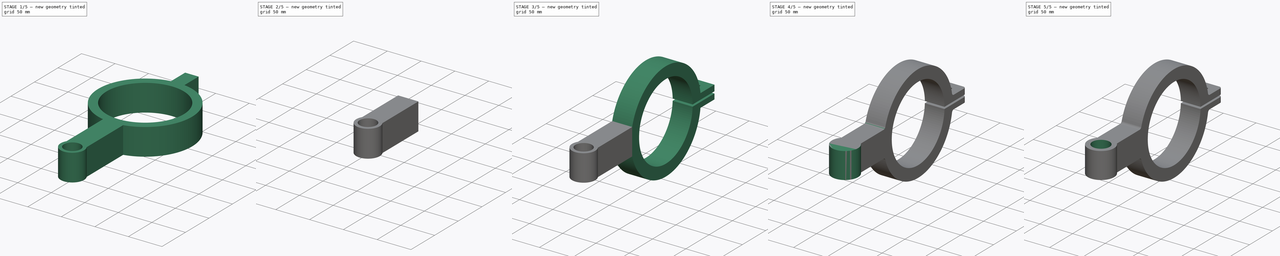
[diagram: build sequence overview — one tinted view per stage of 5, left to right]
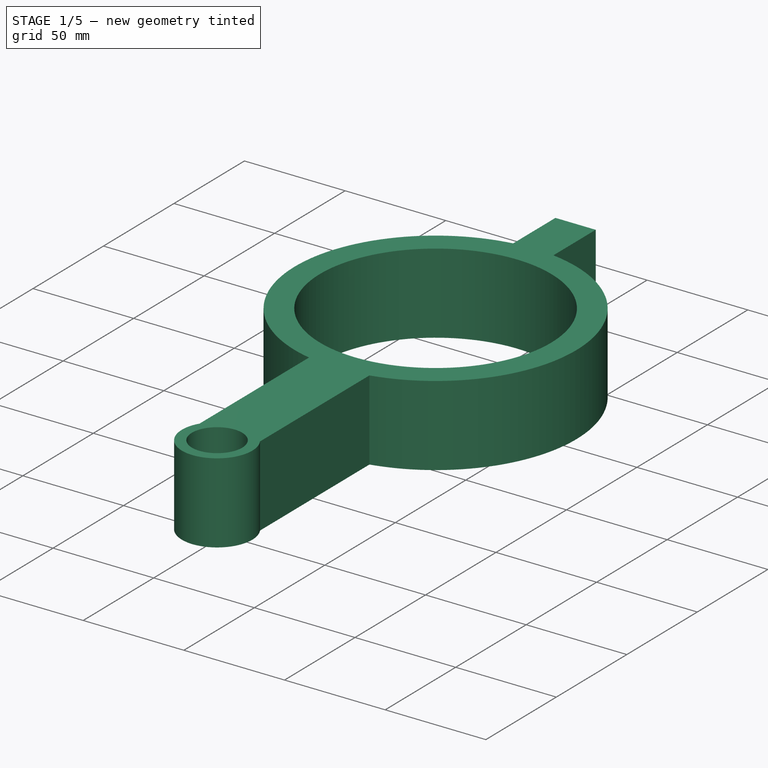
[diagram: stage 1 of 5 — iso view after this stage's code; geometry added in this stage tinted green]
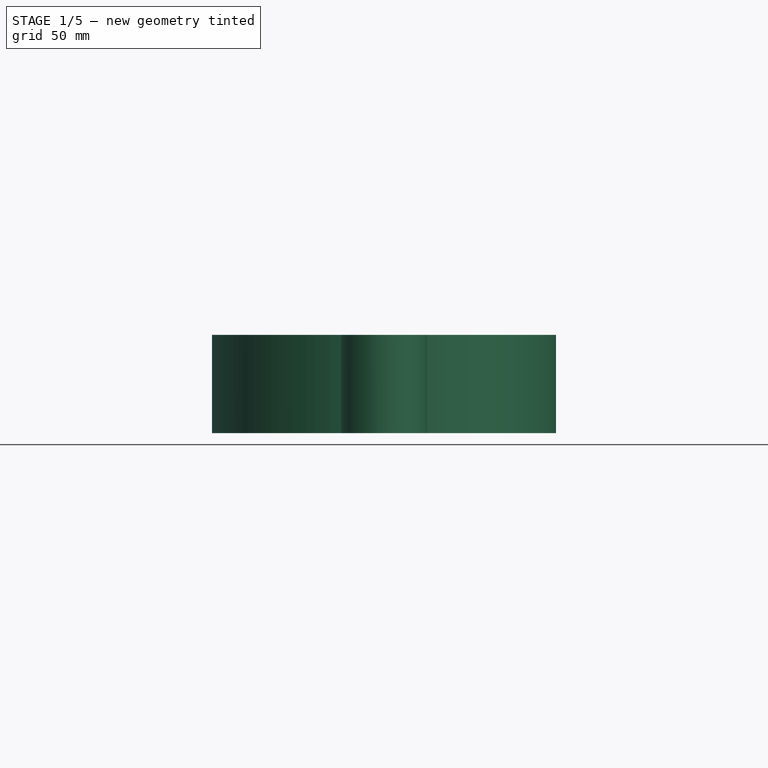
[diagram: stage 1 of 5 — front view after this stage's code; geometry added in this stage tinted green]
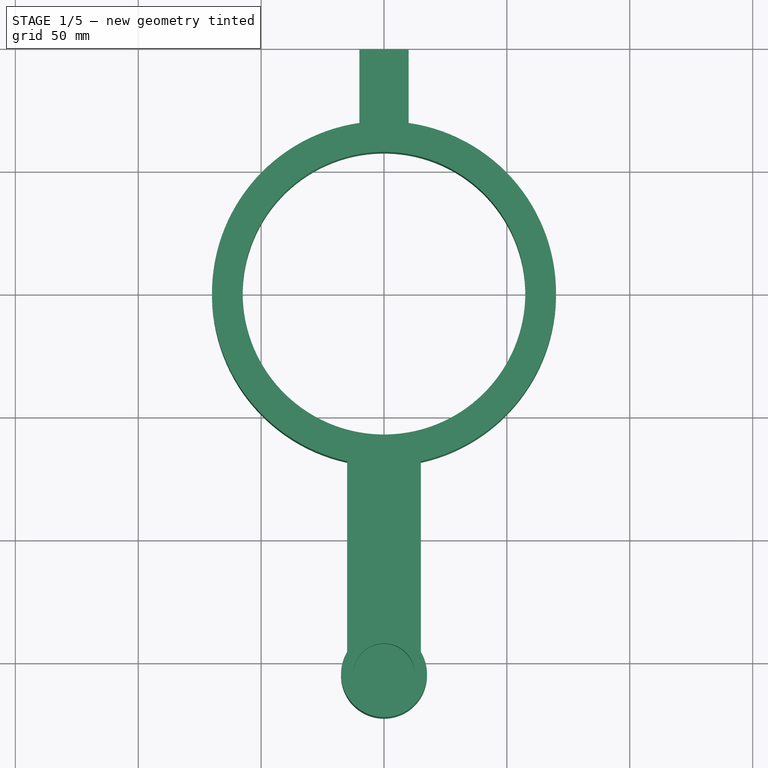
[diagram: stage 1 of 5 — top view after this stage's code; geometry added in this stage tinted green]
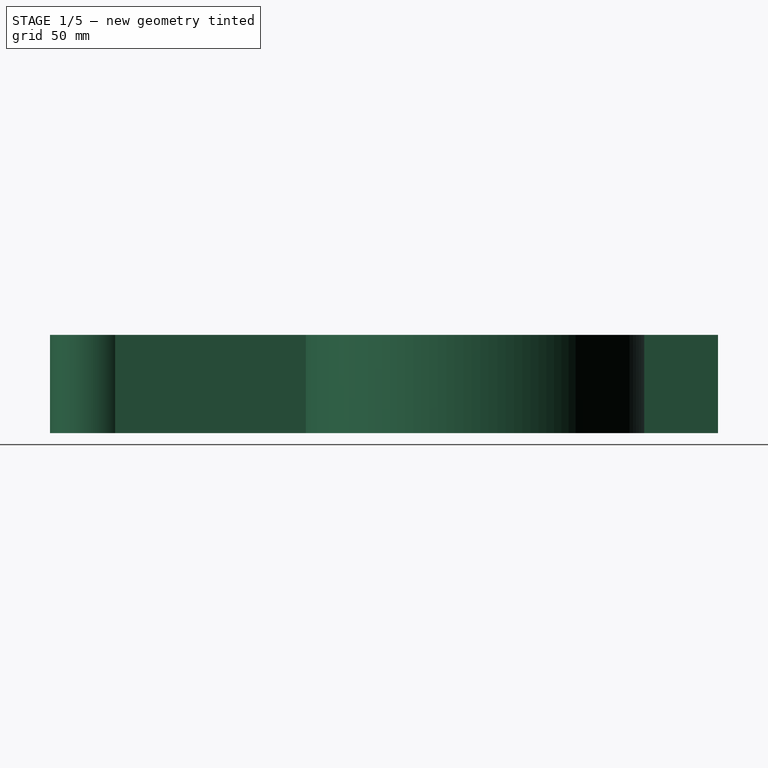
[diagram: stage 1 of 5 — right view after this stage's code; geometry added in this stage tinted green]
FCSTD DOCUMENT  (FreeCAD 1.0R39109 (Git))
Label: PVC_slider
License: All rights reserved
LicenseURL: https://en.wikipedia.org/wiki/All_rights_reserved
objects: Sketcher::SketchObject×16, PartDesign::Pocket×11, PartDesign::Pad×6, PartDesign::Hole×1, PartDesign::Fillet×1, PartDesign::Body×1
note: 90 computed .brp shape members not serialized (recipe doc carries the construction recipe); baked Part::Feature solids carry a one-line shape summary decoded from their .brp

FEATURE [Sketcher::SketchObject] Sketch
  ArcFitTolerance = 1e-06
  AttachmentSupport = -> [XY_Plane]
  FullyConstrained = false
  MakeInternals = false
  MapMode = 5
  sketch-geometry (9):
    g0: ArcOfCircle CenterX=0 CenterY=0 CenterZ=0 NormalX=0 NormalY=0 NormalZ=1 AngleXU=0 Radius=70 StartAngle=1.71414 EndAngle=4.49643
    g1: Circle CenterX=0 CenterY=0 CenterZ=0 NormalX=0 NormalY=0 NormalZ=1 AngleXU=0 Radius=57.5
    g2: LineSegment StartX=-10 StartY=99.282 StartZ=0 EndX=-10 EndY=69.282 EndZ=0
    g3: LineSegment StartX=10 StartY=69.282 StartZ=0 EndX=10 EndY=99.282 EndZ=0
    g4: LineSegment StartX=10 StartY=99.282 StartZ=0 EndX=-10 EndY=99.282 EndZ=0
    g5: LineSegment StartX=-15 StartY=-68.374 StartZ=0 EndX=-15 EndY=-138.374 EndZ=0
    g6: LineSegment StartX=-15 StartY=-138.374 StartZ=0 EndX=15 EndY=-138.374 EndZ=0
    g7: LineSegment StartX=15 StartY=-138.374 StartZ=0 EndX=15 EndY=-68.374 EndZ=0
    g8: ArcOfCircle CenterX=0 CenterY=0 CenterZ=0 NormalX=0 NormalY=0 NormalZ=1 AngleXU=0 Radius=70 StartAngle=4.92835 EndAngle=7.71063
  constraints (26):
    c: Diameter(g0) = 140
    c: Coincident(g0,g-1)
    c: Diameter(g1) = 115
    c: Coincident(g1,g0)
    c: Coincident(g3,g4)
    c: Coincident(g4,g2)
    c: Vertical(g2)
    c: Vertical(g3)
    c: Horizontal(g4)
    c: Distance(g2,g3) = 20
    c: Distance(g2,g4) = 30
    c: DistanceX(g0,g3) = 10
    c: Coincident(g8,g3)
    c: Coincident(g0,g2)
    c: Coincident(g5,g6)
    c: Coincident(g6,g7)
    c: Vertical(g5)
    c: Vertical(g7)
    c: Horizontal(g6)
    c: Distance(g5,g7) = 30
    c: Distance(g6,g5) = 70
    c: DistanceX(g5,g0) = 15
    c: Equal(g0,g8)
    c: Coincident(g0,g5)
    c: PointOnObject(g8,g7)
    c: Coincident(g0,g8)
FEATURE [PartDesign::Pad] Pad
  Direction = (0,0,1)
  Length = 40
  Length2 = 10
  Profile = -> Sketch
  ReferenceAxis = -> Sketch [N_Axis]
  Refine = true
  Suppressed = false
  Type = 0
FEATURE [Sketcher::SketchObject] Sketch001
  ArcFitTolerance = 1e-06
  AttachmentSupport = -> [Pad]
  FullyConstrained = true
  MakeInternals = false
  MapMode = 5
  Placement = pos=(0,0,40) rot=(0,0,1;0rad)
  sketch-geometry (1):
    g0: Circle CenterX=0 CenterY=-155 CenterZ=0 NormalX=0 NormalY=0 NormalZ=1 AngleXU=0 Radius=17.5
  constraints (3):
    c: Diameter(g0) = 35
    c: DistanceX(g-1,g0) = 0
    c: DistanceY(g0,g-1) = 155
FEATURE [PartDesign::Pad] Pad001
  BaseFeature = -> Pad
  Direction = (0,0,1)
  Length = 40
  Length2 = 10
  Profile = -> Sketch001
  ReferenceAxis = -> Sketch001 [N_Axis]
  Refine = true
  Reversed = true
  Suppressed = false
  Type = 0
FEATURE [PartDesign::Pad] Pad002
  BaseFeature = -> Pad001
  Direction = (0,-1,0)
  Length = 10
  Length2 = 10
  Profile = -> Pad001 [Face9,Face5]
  Refine = true
  Suppressed = false
  Type = 0
FEATURE [Sketcher::SketchObject] Sketch002
  ArcFitTolerance = 1e-06
  AttachmentSupport = -> [Pad002]
  FullyConstrained = true
  MakeInternals = false
  MapMode = 5
  Placement = pos=(0,0,40) rot=(0,0,1;0rad)
  sketch-geometry (1):
    g0: Circle CenterX=0 CenterY=-155 CenterZ=0 NormalX=0 NormalY=0 NormalZ=1 AngleXU=0 Radius=12.5
  constraints (3):
    c: Diameter(g0) = 25
    c: DistanceY(g0,g-1) = 155
    c: DistanceX(g-1,g0) = 0
FEATURE [PartDesign::Pocket] Pocket
  BaseFeature = -> Pad002
  Direction = (0,0,-1)
  Length = 15
  Length2 = 5
  Profile = -> Sketch002
  ReferenceAxis = -> Sketch002 [N_Axis]
  Refine = true
  Suppressed = false
  Type = 0
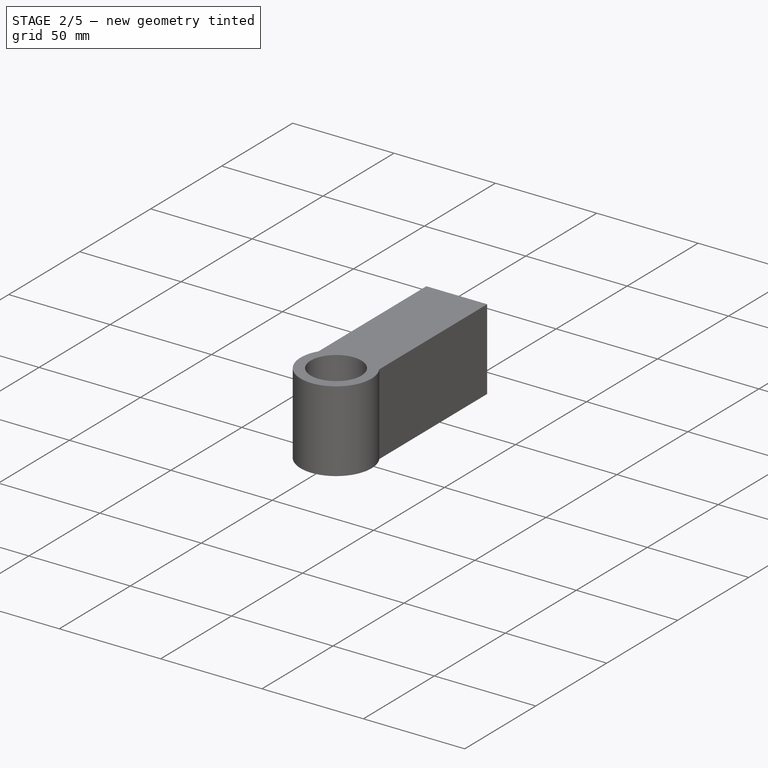
[diagram: stage 2 of 5 — iso view after this stage's code; geometry added in this stage tinted green]
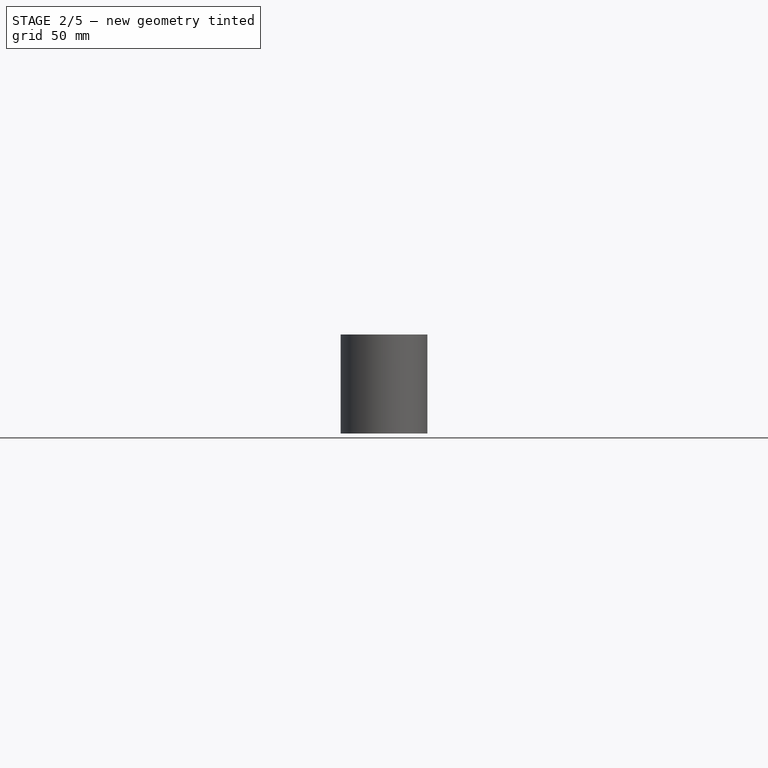
[diagram: stage 2 of 5 — front view after this stage's code; geometry added in this stage tinted green]
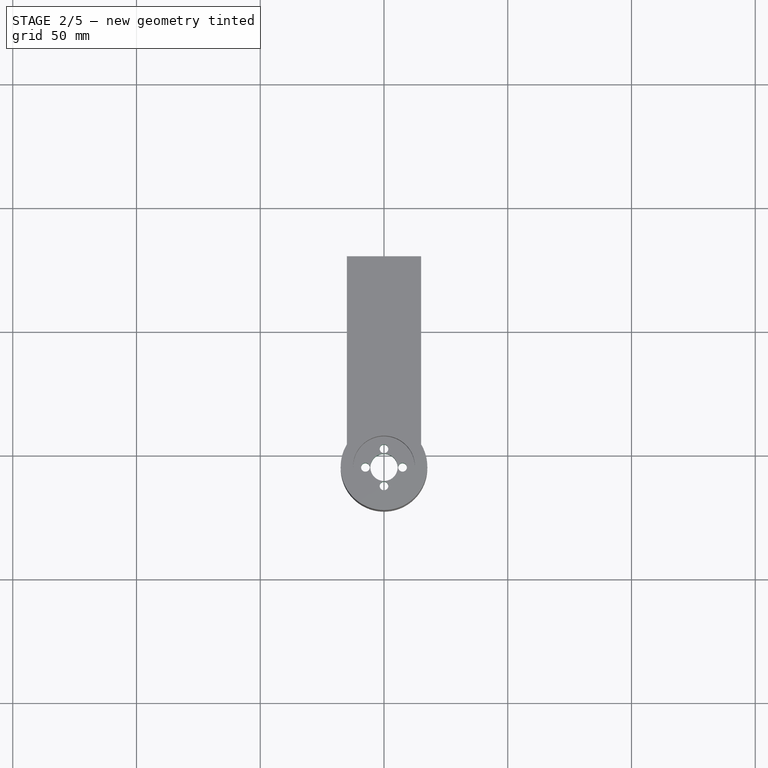
[diagram: stage 2 of 5 — top view after this stage's code; geometry added in this stage tinted green]
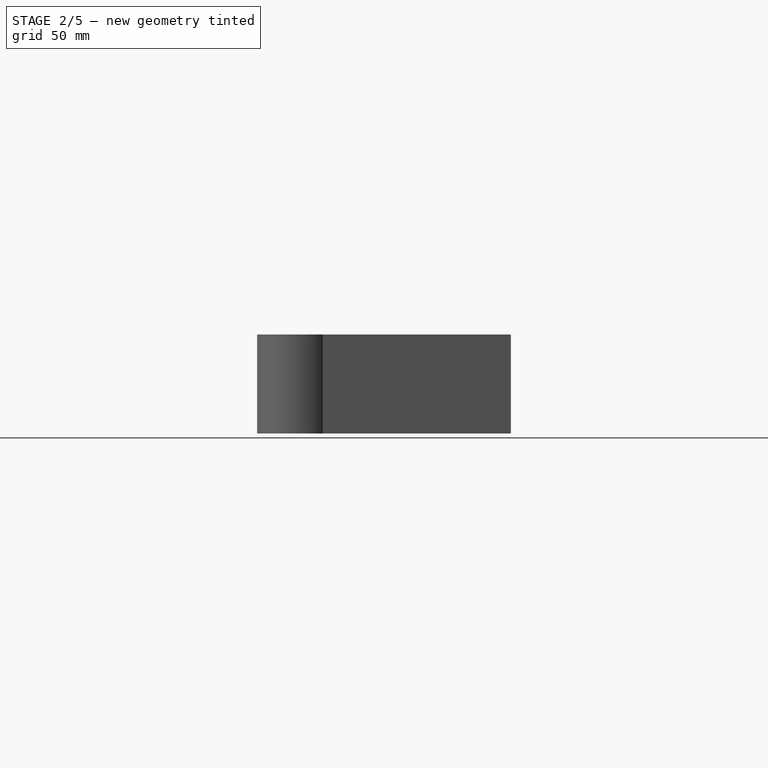
[diagram: stage 2 of 5 — right view after this stage's code; geometry added in this stage tinted green]
FEATURE [Sketcher::SketchObject] Sketch003
  ArcFitTolerance = 1e-06
  AttachmentSupport = -> [Pocket]
  FullyConstrained = true
  MakeInternals = false
  MapMode = 5
  Placement = pos=(0,0,0) rot=(1,0,0;3.14159rad)
  sketch-geometry (1):
    g0: Circle CenterX=0 CenterY=155 CenterZ=0 NormalX=0 NormalY=0 NormalZ=1 AngleXU=0 Radius=12.5
  constraints (3):
    c: Diameter(g0) = 25
    c: DistanceY(g-1,g0) = 155
    c: DistanceX(g0,g-1) = 0
FEATURE [PartDesign::Pocket] Pocket001
  BaseFeature = -> Pocket
  Direction = (0,0,1)
  Length = 15
  Length2 = 5
  Profile = -> Sketch003
  ReferenceAxis = -> Sketch003 [N_Axis]
  Refine = true
  Suppressed = false
  Type = 0
FEATURE [Sketcher::SketchObject] Sketch004
  ArcFitTolerance = 1e-06
  AttachmentSupport = -> [Pocket001]
  FullyConstrained = true
  MakeInternals = false
  MapMode = 5
  Placement = pos=(0,0,15) rot=(1,0,0;3.14159rad)
  sketch-geometry (1):
    g0: Circle CenterX=0 CenterY=155 CenterZ=0 NormalX=0 NormalY=0 NormalZ=1 AngleXU=0 Radius=5.5
  constraints (3):
    c: Diameter(g0) = 11
    c: DistanceX(g-1,g0) = 0
    c: DistanceY(g-1,g0) = 155
FEATURE [PartDesign::Pocket] Pocket002
  BaseFeature = -> Pocket001
  Direction = (0,0,1)
  Length = 10
  Length2 = 5
  Profile = -> Sketch004
  ReferenceAxis = -> Sketch004 [N_Axis]
  Refine = true
  Suppressed = false
  Type = 0
FEATURE [Sketcher::SketchObject] Sketch005
  ArcFitTolerance = 1e-06
  AttachmentSupport = -> [Pocket002]
  FullyConstrained = true
  MakeInternals = false
  MapMode = 5
  Placement = pos=(0,0,15) rot=(1,0,0;3.14159rad)
  sketch-geometry (5):
    g0: Circle [constr] CenterX=0 CenterY=155 CenterZ=0 NormalX=0 NormalY=0 NormalZ=1 AngleXU=0 Radius=5
    g1: Circle CenterX=0 CenterY=162.5 CenterZ=0 NormalX=0 NormalY=0 NormalZ=1 AngleXU=0 Radius=1.75
    g2: Circle CenterX=0 CenterY=147.5 CenterZ=0 NormalX=0 NormalY=0 NormalZ=1 AngleXU=0 Radius=1.75
    g3: Circle CenterX=7.5 CenterY=155 CenterZ=0 NormalX=0 NormalY=0 NormalZ=1 AngleXU=0 Radius=1.75
    g4: Circle CenterX=-7.5 CenterY=155 CenterZ=0 NormalX=0 NormalY=0 NormalZ=1 AngleXU=0 Radius=1.75
  constraints (15):
    c: Diameter(g0) = 10
    c: DistanceY(g-1,g0) = 155
    c: DistanceX(g-1,g0) = 0
    c: Diameter(g1) = 3.5
    c: PointOnObject(g1,g-2)
    c: DistanceY(g0,g1) = 7.5
    c: Diameter(g2) = 3.5
    c: PointOnObject(g2,g-2)
    c: Diameter(g3) = 3.5
    c: Diameter(g4) = 3.5
    c: DistanceY(g4,g3) = 0
    c: DistanceY(g2,g0) = 7.5
    c: DistanceX(g0,g3) = 7.5
    c: DistanceX(g4,g0) = 7.5
    c: DistanceY(g3,g0) = 0
FEATURE [PartDesign::Pocket] Pocket003
  BaseFeature = -> Pocket002
  Direction = (0,0,1)
  Length = 10
  Length2 = 5
  Profile = -> Sketch005
  ReferenceAxis = -> Sketch005 [N_Axis]
  Refine = true
  Suppressed = false
  Type = 0
FEATURE [Sketcher::SketchObject] Sketch006
  ArcFitTolerance = 1e-06
  AttachmentSupport = -> [Pocket003]
  FullyConstrained = false
  MakeInternals = false
  MapMode = 5
  Placement = pos=(0,0,40) rot=(0,0,1;0rad)
  sketch-geometry (4):
    g0: LineSegment StartX=-103.613 StartY=122.597 StartZ=0 EndX=-103.613 EndY=-70 EndZ=0
    g1: LineSegment StartX=-103.613 StartY=-70 StartZ=0 EndX=149.021 EndY=-70 EndZ=0
    g2: LineSegment StartX=149.021 StartY=-70 StartZ=0 EndX=149.021 EndY=122.597 EndZ=0
    g3: LineSegment StartX=149.021 StartY=122.597 StartZ=0 EndX=-103.613 EndY=122.597 EndZ=0
  constraints (9):
    c: Coincident(g0,g1)
    c: Coincident(g1,g2)
    c: Coincident(g2,g3)
    c: Coincident(g3,g0)
    c: Vertical(g0)
    c: Vertical(g2)
    c: Horizontal(g1)
    c: Horizontal(g3)
    c: DistanceY(g0,g-1) = 70
FEATURE [PartDesign::Pocket] Pocket004
  BaseFeature = -> Pocket003
  Direction = (0,0,-1)
  Length = 40
  Length2 = 5
  Profile = -> Sketch006
  ReferenceAxis = -> Sketch006 [N_Axis]
  Refine = true
  Suppressed = false
  Type = 0
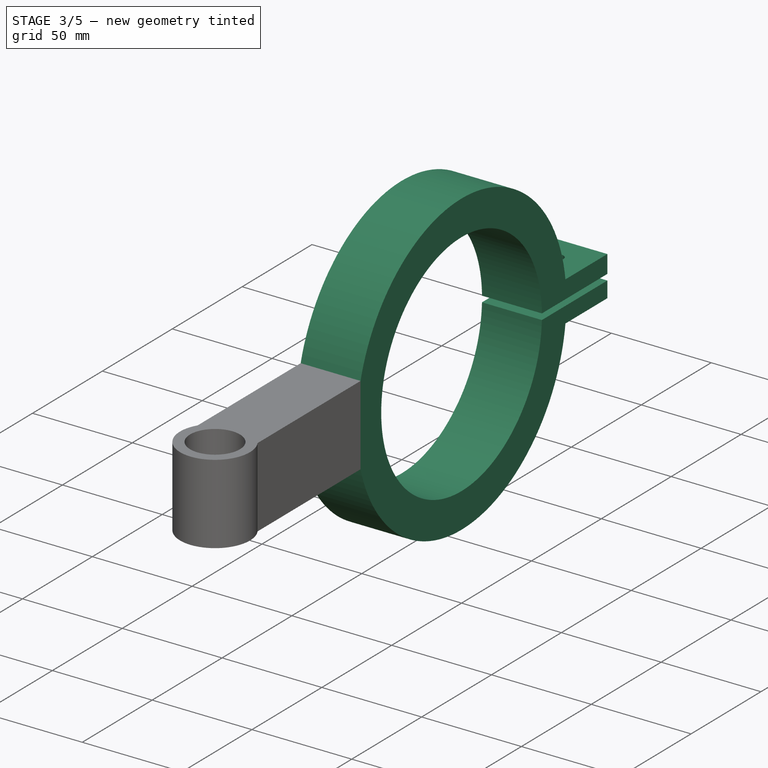
[diagram: stage 3 of 5 — iso view after this stage's code; geometry added in this stage tinted green]
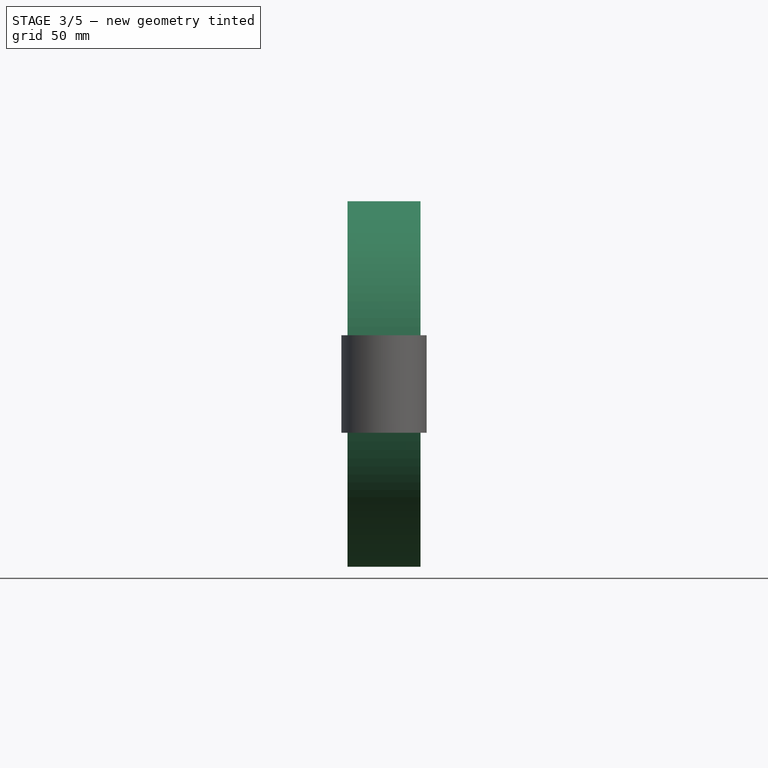
[diagram: stage 3 of 5 — front view after this stage's code; geometry added in this stage tinted green]
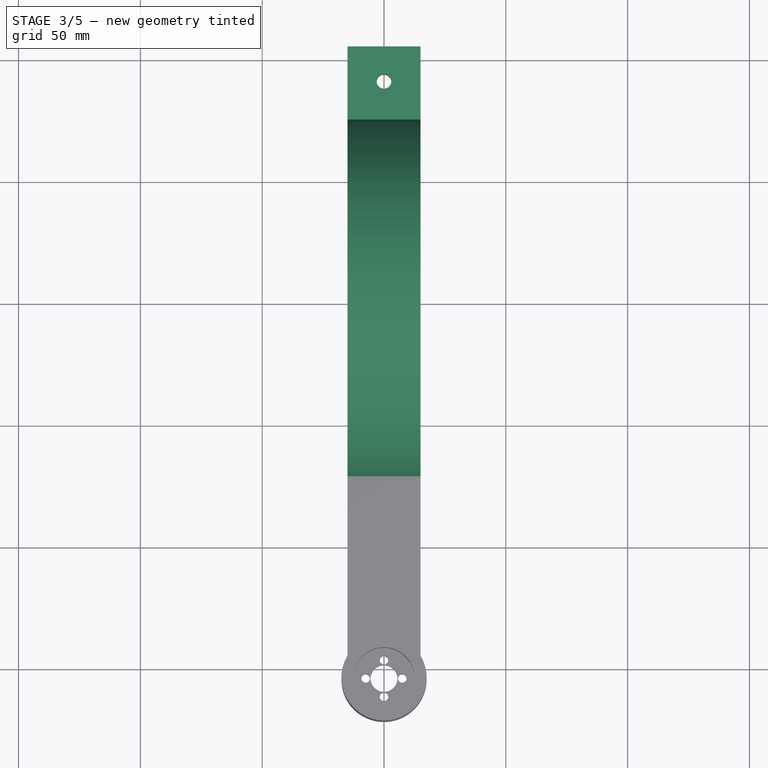
[diagram: stage 3 of 5 — top view after this stage's code; geometry added in this stage tinted green]
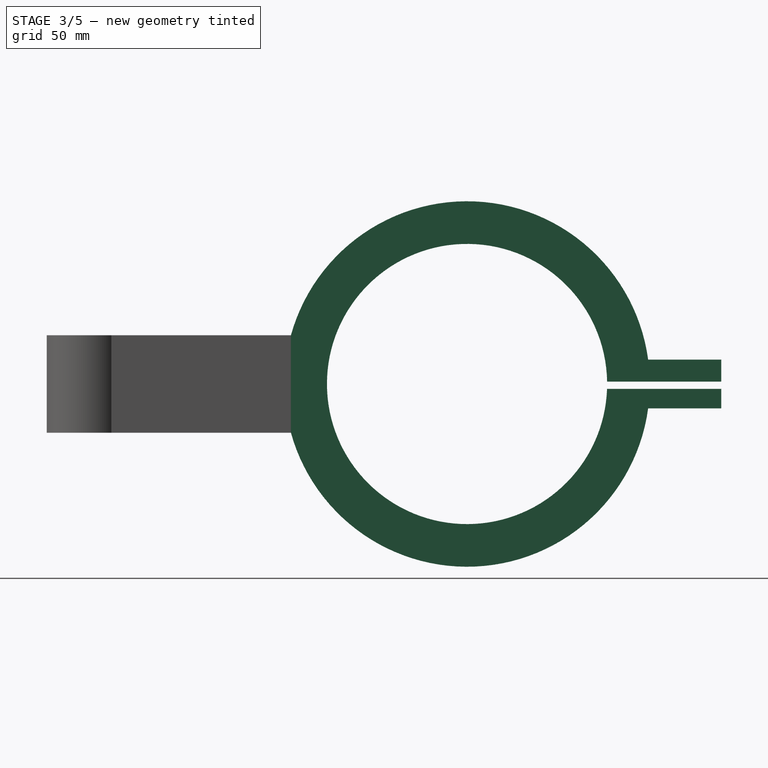
[diagram: stage 3 of 5 — right view after this stage's code; geometry added in this stage tinted green]
FEATURE [Sketcher::SketchObject] Sketch007
  ArcFitTolerance = 1e-06
  AttachmentSupport = -> [Pocket004]
  FullyConstrained = true
  MakeInternals = false
  MapMode = 5
  Placement = pos=(-15,0,0) rot=(0.57735,-0.57735,-0.57735;2.0944rad)
  sketch-geometry (5):
    g0: ArcOfCircle CenterX=0 CenterY=20 CenterZ=0 NormalX=0 NormalY=0 NormalZ=1 AngleXU=0 Radius=75 StartAngle=3.27532 EndAngle=9.29105
    g1: Circle CenterX=0 CenterY=20 CenterZ=0 NormalX=0 NormalY=0 NormalZ=1 AngleXU=0 Radius=57.5
    g2: LineSegment StartX=-104.33 StartY=30 StartZ=0 EndX=-104.33 EndY=10 EndZ=0
    g3: LineSegment StartX=-104.33 StartY=10 StartZ=0 EndX=-74.3303 EndY=10 EndZ=0
    g4: LineSegment StartX=-74.3303 StartY=30 StartZ=0 EndX=-104.33 EndY=30 EndZ=0
  constraints (15):
    c: Diameter(g0) = 150
    c: PointOnObject(g0,g-2)
    c: DistanceY(g-1,g0) = 20
    c: Diameter(g1) = 115
    c: Coincident(g1,g0)
    c: Coincident(g2,g3)
    c: Coincident(g4,g2)
    c: Vertical(g2)
    c: Horizontal(g3)
    c: Horizontal(g4)
    c: DistanceY(g2,g2) = 20
    c: DistanceX(g4,g4) = 30
    c: DistanceY(g3,g0) = 10
    c: Coincident(g0,g4)
    c: Coincident(g0,g3)
FEATURE [PartDesign::Pad] Pad003
  BaseFeature = -> Pocket004
  Direction = (-1,0,0)
  Length = 30
  Length2 = 10
  Profile = -> Sketch007
  ReferenceAxis = -> Sketch007 [N_Axis]
  Refine = true
  Reversed = true
  Suppressed = false
  Type = 0
FEATURE [Sketcher::SketchObject] Sketch008
  ArcFitTolerance = 1e-06
  AttachmentSupport = -> [Pad003]
  FullyConstrained = false
  MakeInternals = false
  MapMode = 5
  Placement = pos=(-15,0,0) rot=(0.57735,-0.57735,-0.57735;2.0944rad)
  sketch-geometry (4):
    g0: LineSegment StartX=-109.915 StartY=21 StartZ=0 EndX=-109.915 EndY=18 EndZ=0
    g1: LineSegment StartX=-109.915 StartY=18 StartZ=0 EndX=-39.915 EndY=18 EndZ=0
    g2: LineSegment StartX=-39.915 StartY=18 StartZ=0 EndX=-39.915 EndY=21 EndZ=0
    g3: LineSegment StartX=-39.915 StartY=21 StartZ=0 EndX=-109.915 EndY=21 EndZ=0
  constraints (11):
    c: Coincident(g0,g1)
    c: Coincident(g1,g2)
    c: Coincident(g2,g3)
    c: Coincident(g3,g0)
    c: Vertical(g0)
    c: Vertical(g2)
    c: Horizontal(g1)
    c: Horizontal(g3)
    c: Distance(g0,g2) = 70
    c: Distance(g1,g3) = 3
    c: DistanceY(g-1,g1) = 18
FEATURE [PartDesign::Pocket] Pocket005
  BaseFeature = -> Pad003
  Direction = (1,0,0)
  Length = 30
  Length2 = 5
  Profile = -> Sketch008
  ReferenceAxis = -> Sketch008 [N_Axis]
  Refine = true
  Suppressed = false
  Type = 0
FEATURE [Sketcher::SketchObject] Sketch009
  ArcFitTolerance = 1e-06
  AttachmentSupport = -> [Pocket005]
  FullyConstrained = true
  MakeInternals = false
  MapMode = 5
  Placement = pos=(0,0,30) rot=(0,0,1;0rad)
  sketch-geometry (1):
    g0: Circle CenterX=0 CenterY=90 CenterZ=0 NormalX=0 NormalY=0 NormalZ=1 AngleXU=0 Radius=2.5
  constraints (3):
    c: PointOnObject(g0,g-2)
    c: Diameter(g0) = 5
    c: DistanceY(g-1,g0) = 90
FEATURE [PartDesign::Hole] Hole
  BaseFeature = -> Pocket005
  CustomThreadClearance = 0
  Depth = 30
  DepthType = 0
  Diameter = 6
  DrillForDepth = false
  DrillPoint = 1
  DrillPointAngle = 118
  HoleCutCountersinkAngle = 90
  HoleCutCustomValues = false
  HoleCutDepth = 0
  HoleCutDiameter = 6.1
  HoleCutType = 0
  ModelThread = false
  Profile = -> Sketch009
  Refine = true
  Suppressed = false
  Tapered = false
  TaperedAngle = 90
  ThreadClass = 0
  ThreadDepth = 30
  ThreadDepthType = 0
  ThreadDirection = 0
  ThreadFit = 0
  ThreadSize = 0
  ThreadType = 0
  Threaded = false
  UseCustomThreadClearance = false
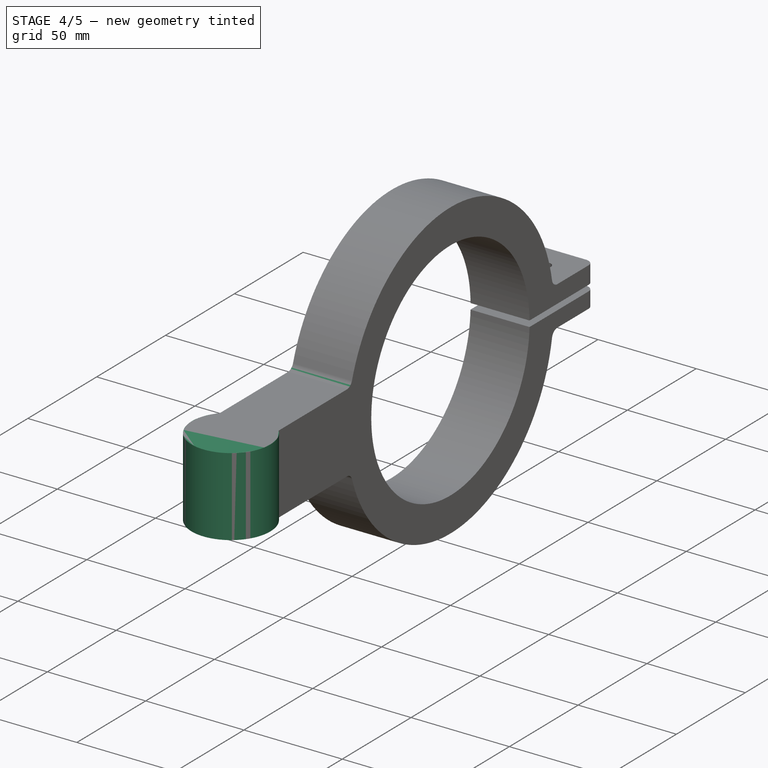
[diagram: stage 4 of 5 — iso view after this stage's code; geometry added in this stage tinted green]
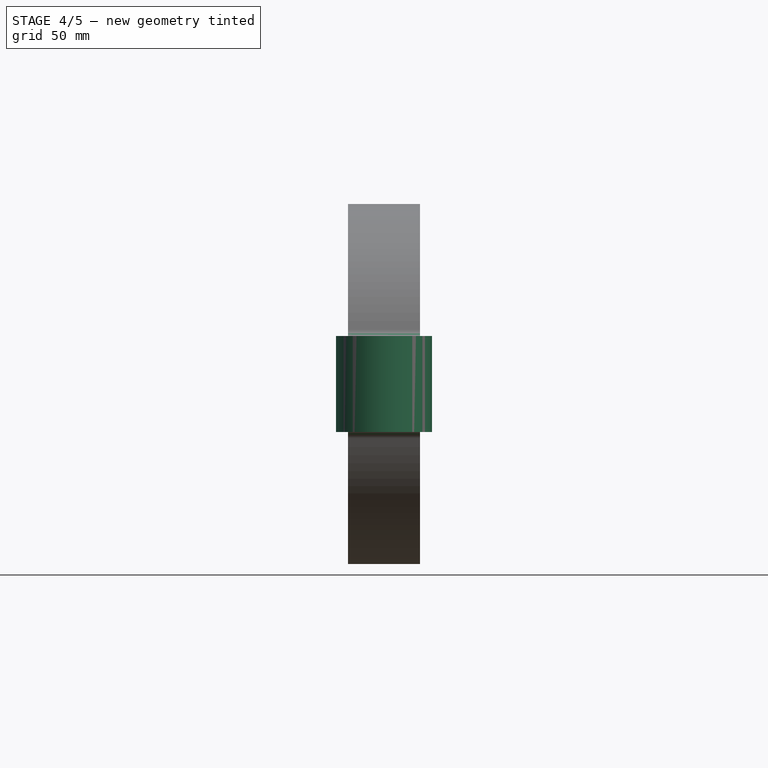
[diagram: stage 4 of 5 — front view after this stage's code; geometry added in this stage tinted green]
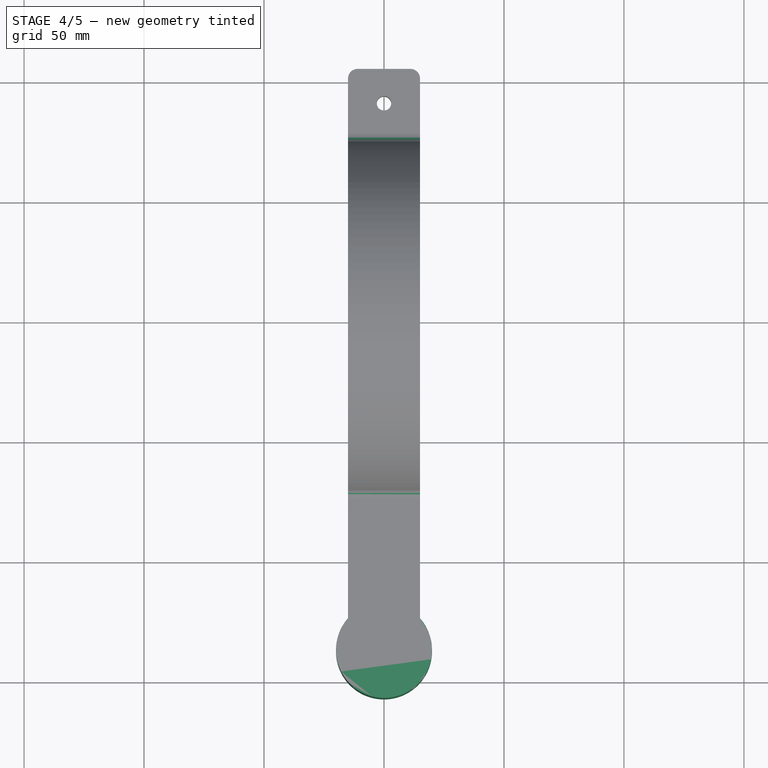
[diagram: stage 4 of 5 — top view after this stage's code; geometry added in this stage tinted green]
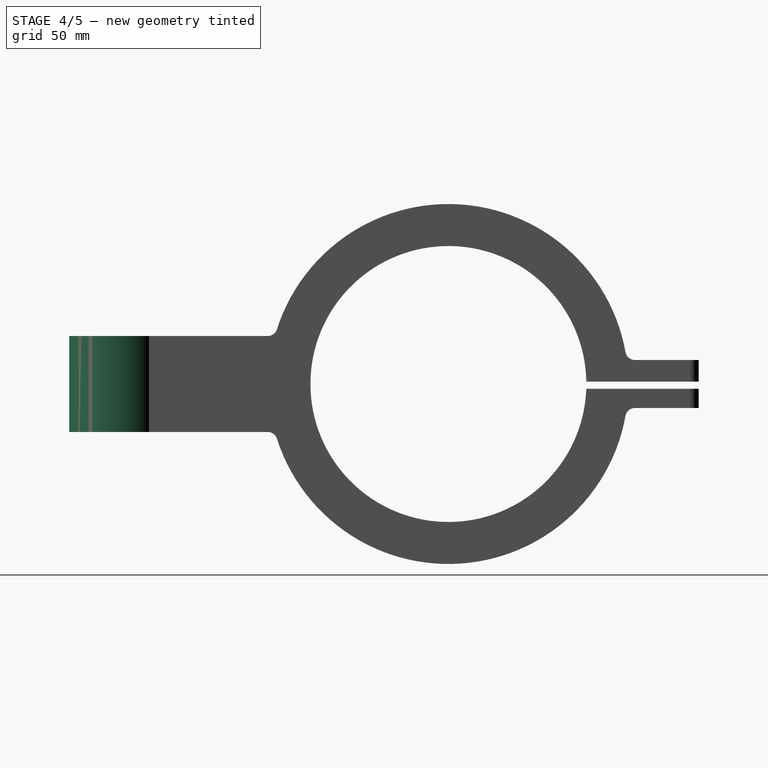
[diagram: stage 4 of 5 — right view after this stage's code; geometry added in this stage tinted green]
FEATURE [PartDesign::Fillet] Fillet
  Base = -> Hole [Edge9,Edge23,Edge2,Edge5,Edge47,Edge35,Edge32,Edge27,Edge19,Edge14]
  BaseFeature = -> Hole
  Radius = 4
  Refine = true
  SupportTransform = false
  Suppressed = false
  UseAllEdges = false
FEATURE [Sketcher::SketchObject] Sketch010
  ArcFitTolerance = 1e-06
  AttachmentSupport = -> [Fillet]
  FullyConstrained = false
  MakeInternals = false
  MapMode = 5
  Placement = pos=(0,0,0) rot=(1,0,0;3.14159rad)
  sketch-geometry (4):
    g0: LineSegment StartX=-23.8277 StartY=173 StartZ=0 EndX=-23.8277 EndY=138 EndZ=0
    g1: LineSegment StartX=-23.8277 StartY=138 StartZ=0 EndX=26.1723 EndY=138 EndZ=0
    g2: LineSegment StartX=26.1723 StartY=138 StartZ=0 EndX=26.1723 EndY=173 EndZ=0
    g3: LineSegment StartX=26.1723 StartY=173 StartZ=0 EndX=-23.8277 EndY=173 EndZ=0
  constraints (11):
    c: Coincident(g0,g1)
    c: Coincident(g1,g2)
    c: Coincident(g2,g3)
    c: Coincident(g3,g0)
    c: Vertical(g0)
    c: Vertical(g2)
    c: Horizontal(g1)
    c: Horizontal(g3)
    c: Distance(g0,g2) = 50
    c: Distance(g1,g3) = 35
    c: DistanceY(g-1,g1) = 138
FEATURE [PartDesign::Pocket] Pocket006
  BaseFeature = -> Fillet
  Direction = (0,0,1)
  Length = 50
  Length2 = 5
  Profile = -> Sketch010
  ReferenceAxis = -> Sketch010 [N_Axis]
  Refine = true
  Suppressed = false
  Type = 0
FEATURE [PartDesign::Pad] Pad004
  BaseFeature = -> Pocket006
  Direction = (0,-1,0)
  Length = 10
  Length2 = 10
  Profile = -> Pocket006 [Face3]
  Refine = true
  Suppressed = false
  Type = 0
FEATURE [Sketcher::SketchObject] Sketch011
  ArcFitTolerance = 1e-06
  AttachmentSupport = -> [Pad004]
  FullyConstrained = true
  MakeInternals = false
  MapMode = 5
  Placement = pos=(0,0,0) rot=(1,0,0;3.14159rad)
  sketch-geometry (1):
    g0: Circle CenterX=0 CenterY=138 CenterZ=0 NormalX=0 NormalY=0 NormalZ=1 AngleXU=0 Radius=20
  constraints (3):
    c: Diameter(g0) = 40
    c: PointOnObject(g0,g-2)
    c: DistanceY(g-1,g0) = 138
FEATURE [PartDesign::Pad] Pad005
  BaseFeature = -> Pad004
  Direction = (0,0,-1)
  Length = 40
  Length2 = 10
  Profile = -> Sketch011
  ReferenceAxis = -> Sketch011 [N_Axis]
  Refine = true
  Reversed = true
  Suppressed = false
  Type = 0
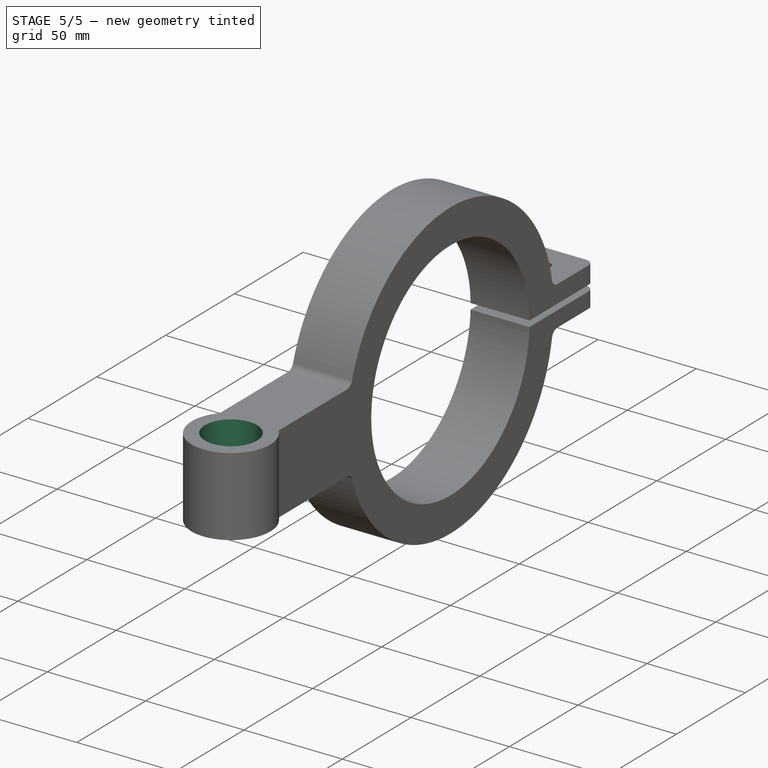
[diagram: stage 5 of 5 — iso view after this stage's code; geometry added in this stage tinted green]
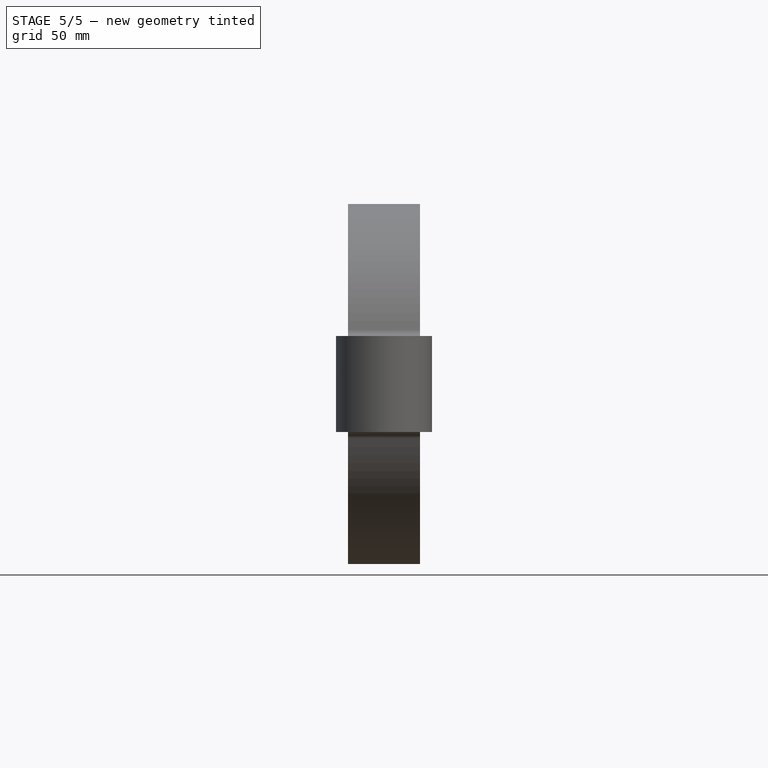
[diagram: stage 5 of 5 — front view after this stage's code; geometry added in this stage tinted green]
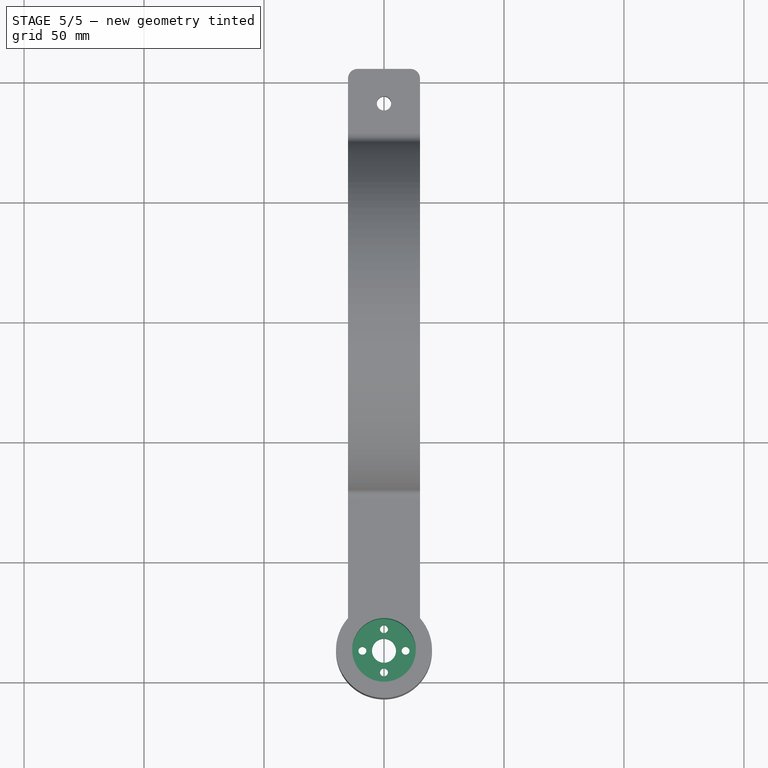
[diagram: stage 5 of 5 — top view after this stage's code; geometry added in this stage tinted green]
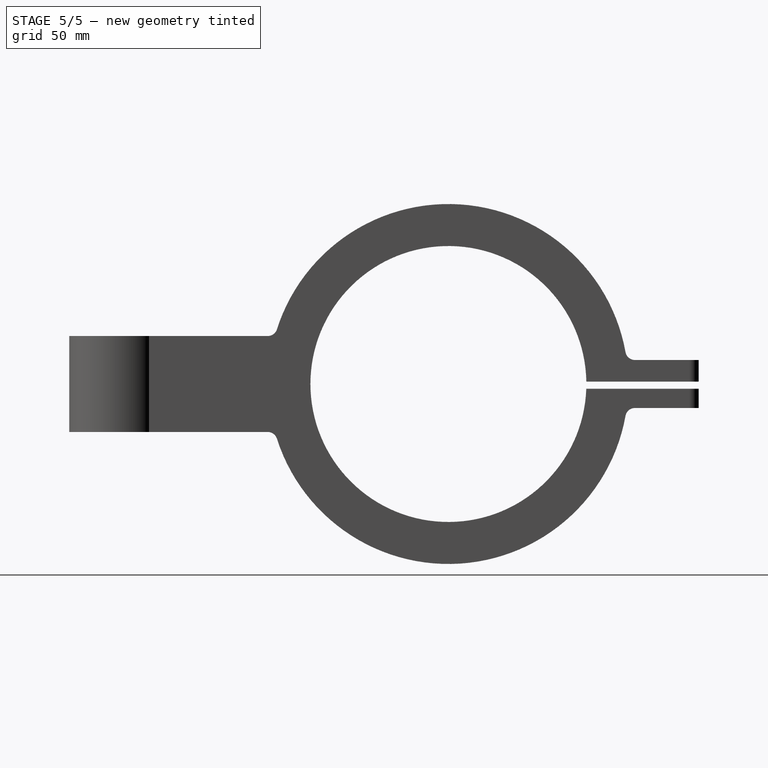
[diagram: stage 5 of 5 — right view after this stage's code; geometry added in this stage tinted green]
FEATURE [Sketcher::SketchObject] Sketch012
  ArcFitTolerance = 1e-06
  AttachmentSupport = -> [Pad005]
  FullyConstrained = true
  MakeInternals = false
  MapMode = 5
  Placement = pos=(0,0,40) rot=(0,0,1;0rad)
  sketch-geometry (1):
    g0: Circle CenterX=0 CenterY=-138 CenterZ=0 NormalX=0 NormalY=0 NormalZ=1 AngleXU=0 Radius=5
  constraints (3):
    c: Diameter(g0) = 10
    c: PointOnObject(g0,g-2)
    c: DistanceY(g0,g-1) = 138
FEATURE [PartDesign::Pocket] Pocket007
  BaseFeature = -> Pad005
  Direction = (0,0,-1)
  Length = 500
  Length2 = 5
  Profile = -> Sketch012
  ReferenceAxis = -> Sketch012 [N_Axis]
  Refine = true
  Suppressed = false
  Type = 0
FEATURE [Sketcher::SketchObject] Sketch013
  ArcFitTolerance = 1e-06
  AttachmentSupport = -> [Pocket007]
  FullyConstrained = true
  MakeInternals = false
  MapMode = 5
  Placement = pos=(0,0,40) rot=(0,0,1;0rad)
  sketch-geometry (1):
    g0: Circle CenterX=0 CenterY=-138 CenterZ=0 NormalX=0 NormalY=0 NormalZ=1 AngleXU=0 Radius=13.25
  constraints (3):
    c: Diameter(g0) = 26.5
    c: PointOnObject(g0,g-2)
    c: DistanceY(g0,g-1) = 138
FEATURE [PartDesign::Pocket] Pocket008
  BaseFeature = -> Pocket007
  Direction = (0,0,-1)
  Length = 20
  Length2 = -5
  Profile = -> Sketch013
  ReferenceAxis = -> Sketch013 [N_Axis]
  Refine = true
  Suppressed = false
  Type = 0
FEATURE [Sketcher::SketchObject] Sketch014
  ArcFitTolerance = 1e-06
  AttachmentSupport = -> [Pocket008]
  FullyConstrained = true
  MakeInternals = false
  MapMode = 5
  Placement = pos=(0,0,0) rot=(1,0,0;3.14159rad)
  sketch-geometry (1):
    g0: Circle CenterX=0 CenterY=138 CenterZ=0 NormalX=0 NormalY=0 NormalZ=1 AngleXU=0 Radius=13
  constraints (3):
    c: Diameter(g0) = 26
    c: PointOnObject(g0,g-2)
    c: DistanceY(g-1,g0) = 138
FEATURE [PartDesign::Pocket] Pocket009
  BaseFeature = -> Pocket008
  Direction = (0,0,1)
  Length = 13
  Length2 = 5
  Profile = -> Sketch014
  ReferenceAxis = -> Sketch014 [N_Axis]
  Refine = true
  Suppressed = false
  Type = 0
FEATURE [Sketcher::SketchObject] Sketch015
  ArcFitTolerance = 1e-06
  AttachmentSupport = -> [Pocket009]
  FullyConstrained = false
  MakeInternals = false
  MapMode = 5
  Placement = pos=(0,0,20) rot=(0,0,1;0rad)
  sketch-geometry (5):
    g0: Circle [constr] CenterX=0 CenterY=-138 CenterZ=0 NormalX=0 NormalY=0 NormalZ=1 AngleXU=0 Radius=4.99442
    g1: Circle CenterX=0 CenterY=-129 CenterZ=0 NormalX=0 NormalY=0 NormalZ=1 AngleXU=0 Radius=1.65
    g2: Circle CenterX=-9 CenterY=-138 CenterZ=0 NormalX=0 NormalY=0 NormalZ=1 AngleXU=0 Radius=1.65
    g3: Circle CenterX=0 CenterY=-147 CenterZ=0 NormalX=0 NormalY=0 NormalZ=1 AngleXU=0 Radius=1.65
    g4: Circle CenterX=9 CenterY=-138 CenterZ=0 NormalX=0 NormalY=0 NormalZ=1 AngleXU=0 Radius=1.65
  constraints (14):
    c: PointOnObject(g0,g-2)
    c: Diameter(g1) = 3.3
    c: PointOnObject(g1,g-2)
    c: Diameter(g2) = 3.3
    c: Diameter(g3) = 3.3
    c: PointOnObject(g3,g-2)
    c: Diameter(g4) = 3.3
    c: DistanceY(g0,g-1) = 138
    c: DistanceY(g2,g4) = 0
    c: DistanceX(g0,g4) = 9
    c: DistanceX(g2,g0) = 9
    c: DistanceY(g0,g1) = 9
    c: DistanceY(g3,g0) = 9
    c: DistanceY(g0,g4) = 0
FEATURE [PartDesign::Pocket] Pocket010
  BaseFeature = -> Pocket009
  Direction = (0,0,-1)
  Length = 8
  Length2 = 5
  Profile = -> Sketch015
  ReferenceAxis = -> Sketch015 [N_Axis]
  Refine = true
  Suppressed = false
  Type = 0
FEATURE [PartDesign::Body] Body
  AllowCompound = false
  Group = -> [Sketch,Pad,Sketch001,Pad001,Pad002,Sketch002,Pocket,Sketch003,Pocket001,Sketch004,Pocket002,Sketch005,Pocket003,Sketch006,Pocket004,Sketch007,Pad003,Sketch008,Pocket005,Sketch009,Hole,Fillet,Sketch010,Pocket006,Pad004,Sketch011,Pad005,Sketch012,Pocket007,Sketch013,Pocket008,Sketch014,Pocket009,Sketch015,Pocket010]
  Origin = -> Origin
  Tip = -> Pocket010
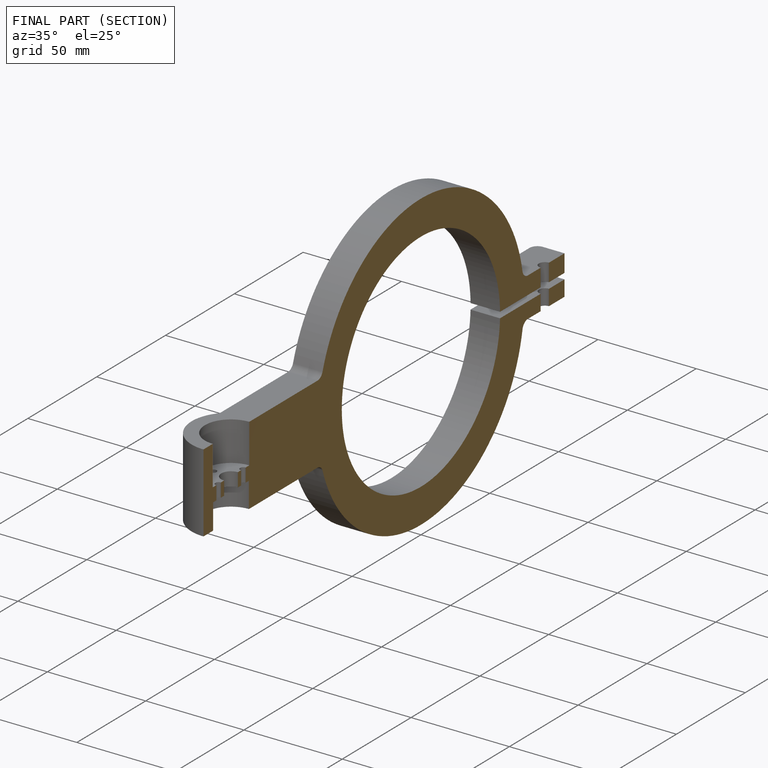
[diagram: finished part — half-section view (interior)]
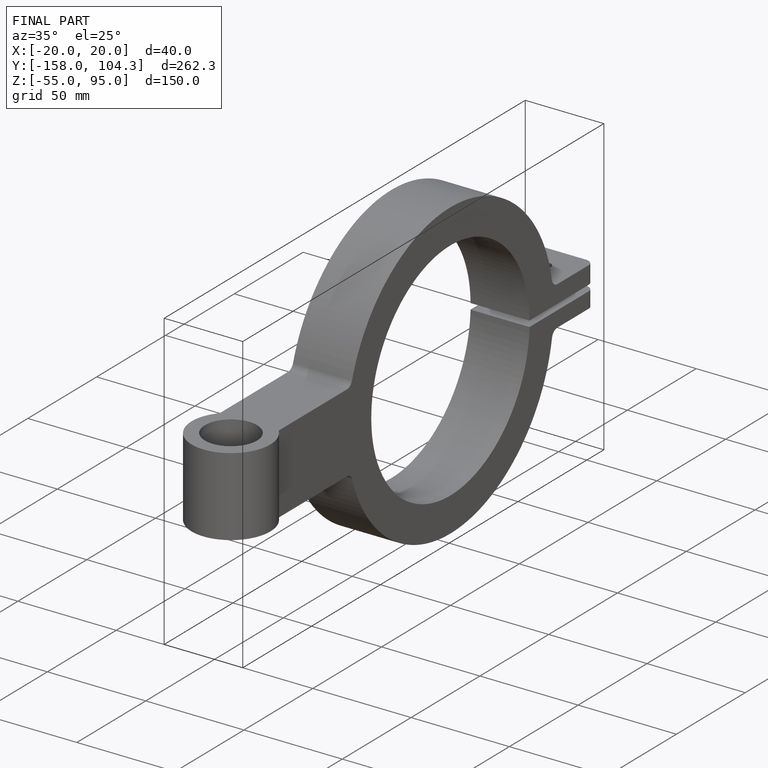
[diagram: finished part — iso view with bounding-box wireframe]
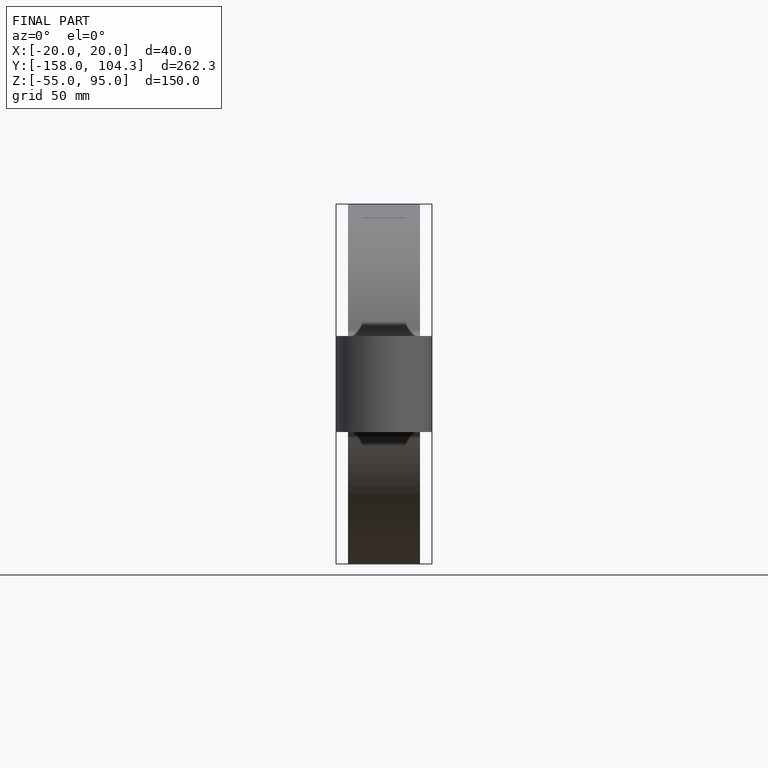
[diagram: finished part — front view with bounding-box wireframe]
